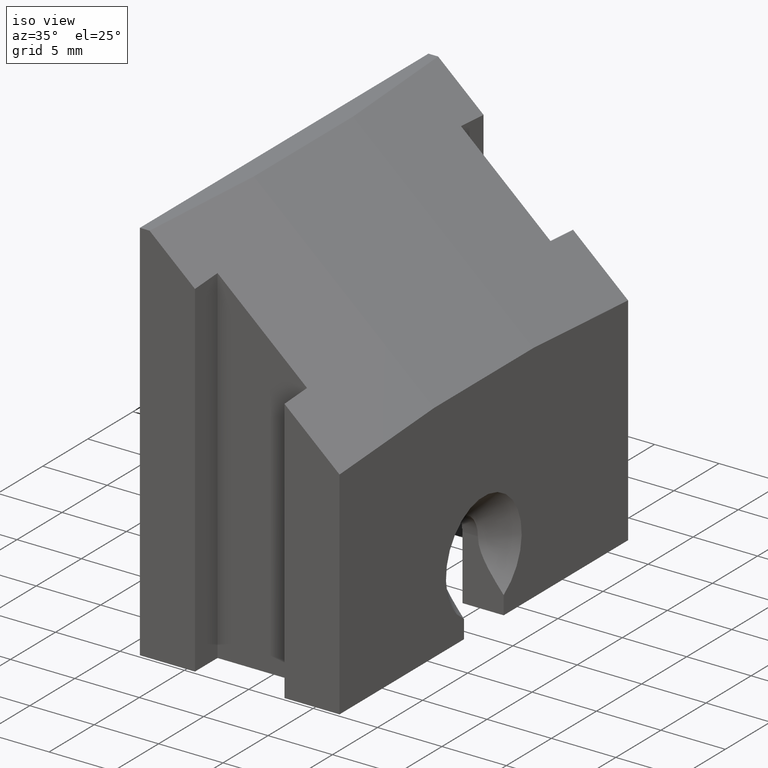
[diagram: clean part render]
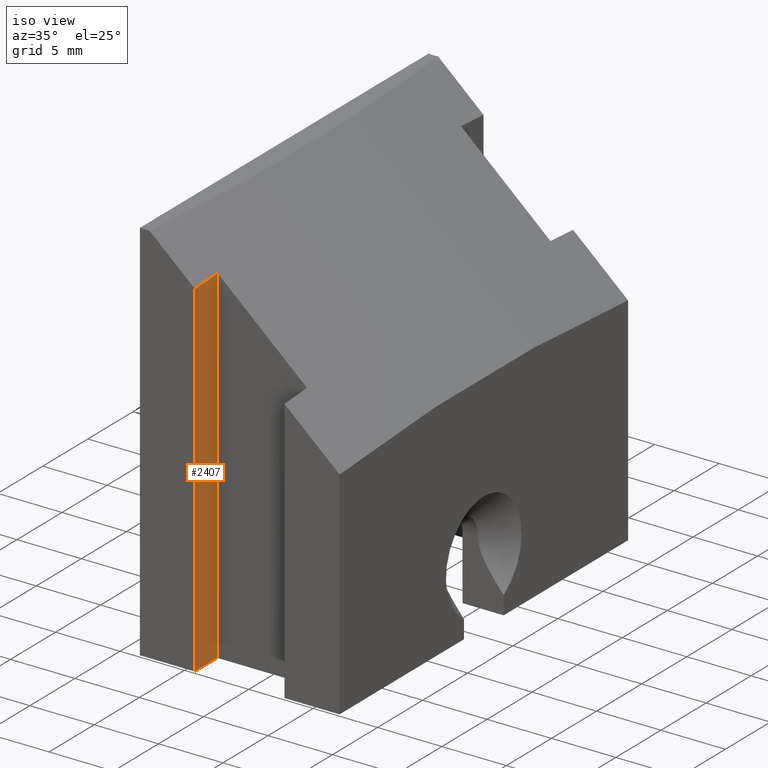
[diagram: same view with one face highlighted and labeled with its STEP entity id]
A machine part, iso view. The second image highlights one B-rep face of the part: STEP entity #2407.
In plain terms, the highlighted planar face has unit normal (-1, -0, 0).
Its self-contained STEP definition (entity closure, byte-faithful):
#232 = PLANE ( 'NONE',  #244 ) ;
#244 = AXIS2_PLACEMENT_3D ( 'NONE', #1247, #3219, #7291 ) ;
#705 = EDGE_CURVE ( 'NONE', #4987, #1963, #3703, .T. ) ;
#1247 = CARTESIAN_POINT ( 'NONE',  ( -3.474999999999996536, -13.50000000000000000, 15.00000000000000000 ) ) ;
#1570 = CARTESIAN_POINT ( 'NONE',  ( -3.474999999999996536, -16.00000000000000355, 11.85202412931699456 ) ) ;
#1620 = LINE ( 'NONE', #10850, #5602 ) ;
#1705 = DIRECTION ( 'NONE',  ( -0.000000000000000000, -0.000000000000000000, -1.000000000000000000 ) ) ;
#1963 = VERTEX_POINT ( 'NONE', #7295 ) ;
#2017 = CARTESIAN_POINT ( 'NONE',  ( -3.474999999999996536, -13.50000000000000000, 12.01161872437757339 ) ) ;
#2198 = CARTESIAN_POINT ( 'NONE',  ( -3.474999999999996536, -16.00000000000000355, -15.00000000000000000 ) ) ;
#2407 = ADVANCED_FACE ( 'NONE', ( #2715 ), #232, .F. ) ;
#2715 = FACE_OUTER_BOUND ( 'NONE', #11947, .T. ) ;
#3219 = DIRECTION ( 'NONE',  ( -1.000000000000000000, -1.734723475976804383E-16, 0.000000000000000000 ) ) ;
#3564 = EDGE_CURVE ( 'NONE', #6074, #1963, #10259, .T. ) ;
#3703 = LINE ( 'NONE', #4593, #10776 ) ;
#4455 = DIRECTION ( 'NONE',  ( -0.000000000000000000, -0.000000000000000000, -1.000000000000000000 ) ) ;
#4587 = LINE ( 'NONE', #9839, #12912 ) ;
#4593 = CARTESIAN_POINT ( 'NONE',  ( -3.474999999999996536, -13.50000000000000000, 15.00000000000000000 ) ) ;
#4987 = VERTEX_POINT ( 'NONE', #2017 ) ;
#5393 = VERTEX_POINT ( 'NONE', #1570 ) ;
#5523 = EDGE_CURVE ( 'NONE', #5393, #6074, #4587, .T. ) ;
#5602 = VECTOR ( 'NONE', #12837, 999.9999999999998863 ) ;
#6074 = VERTEX_POINT ( 'NONE', #2198 ) ;
#7291 = DIRECTION ( 'NONE',  ( 1.734723475976804383E-16, -1.000000000000000000, 0.000000000000000000 ) ) ;
#7292 = VECTOR ( 'NONE', #7573, 1000.000000000000000 ) ;
#7295 = CARTESIAN_POINT ( 'NONE',  ( -3.474999999999996536, -13.50000000000000000, -15.00000000000000000 ) ) ;
#7573 = DIRECTION ( 'NONE',  ( -1.734723475976804383E-16, 1.000000000000000000, -0.000000000000000000 ) ) ;
#9832 = ORIENTED_EDGE ( 'NONE', *, *, #705, .F. ) ;
#9839 = CARTESIAN_POINT ( 'NONE',  ( -3.474999999999996536, -16.00000000000000355, 15.00000000000000000 ) ) ;
#10259 = LINE ( 'NONE', #11773, #7292 ) ;
#10776 = VECTOR ( 'NONE', #4455, 1000.000000000000000 ) ;
#10850 = CARTESIAN_POINT ( 'NONE',  ( -3.474999999999996536, -13.31000249123679069, 12.02374775456700817 ) ) ;
#11557 = ORIENTED_EDGE ( 'NONE', *, *, #11986, .F. ) ;
#11773 = CARTESIAN_POINT ( 'NONE',  ( -3.474999999999996536, -13.50000000000000000, -15.00000000000000000 ) ) ;
#11947 = EDGE_LOOP ( 'NONE', ( #11557, #12549, #12088, #9832 ) ) ;
#11986 = EDGE_CURVE ( 'NONE', #5393, #4987, #1620, .T. ) ;
#12088 = ORIENTED_EDGE ( 'NONE', *, *, #3564, .T. ) ;
#12549 = ORIENTED_EDGE ( 'NONE', *, *, #5523, .T. ) ;
#12837 = DIRECTION ( 'NONE',  ( -1.731199510267587730E-16, 0.9979685720761735102, 0.06370815605747327803 ) ) ;
#12912 = VECTOR ( 'NONE', #1705, 1000.000000000000000 ) ;